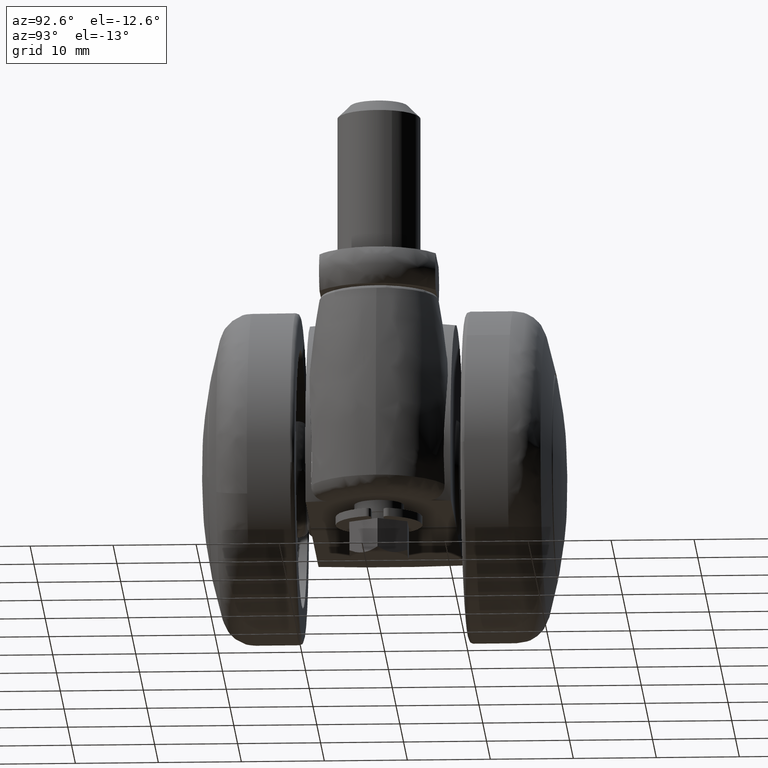
[diagram: clean part render]
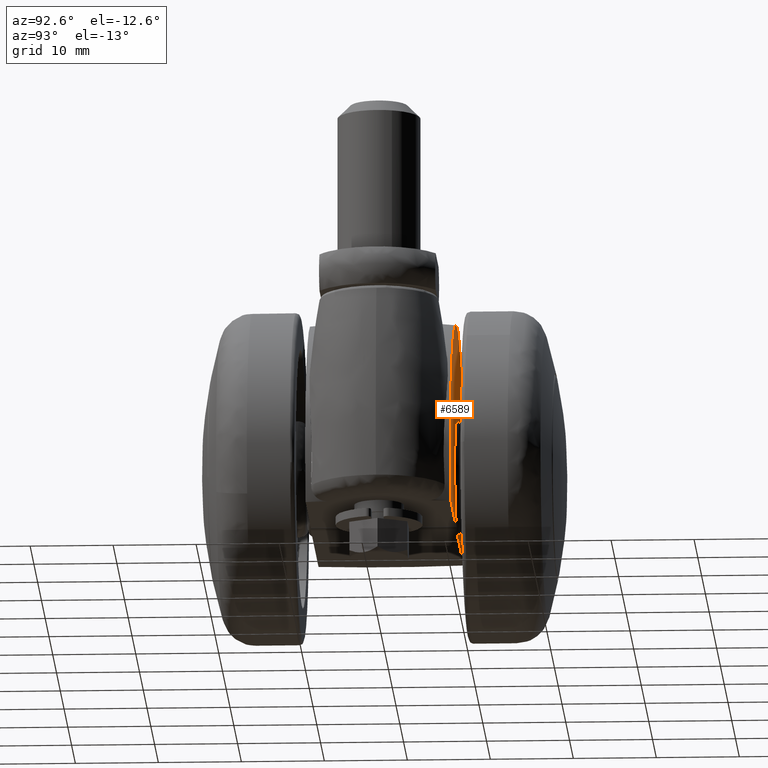
[diagram: same view with one face highlighted and labeled with its STEP entity id]
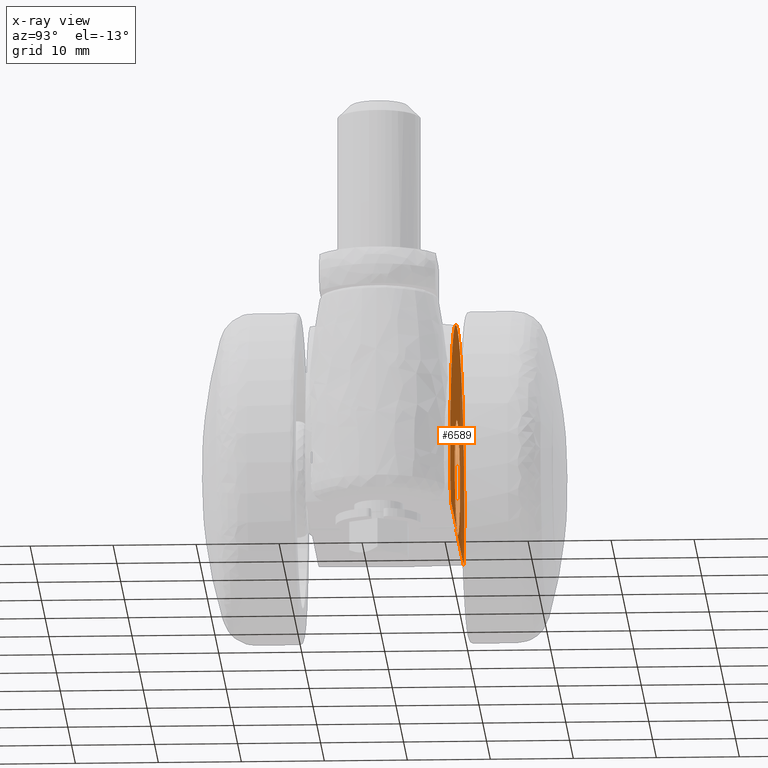
[diagram: x-ray of the same camera — body ghosted, the highlighted face saturated]
A machine part, auxiliary view. The second image highlights one B-rep face of the part: STEP entity #6589.
The next image is the same camera in x-ray: the body ghosted, the highlighted face saturated — about 32% of this face is hidden behind the body in this view.
In plain terms, the highlighted face is a freeform B-spline surface patch.
Its self-contained STEP definition (entity closure, byte-faithful):
#5364=CARTESIAN_POINT('',(2.840961451424674,8.750000000298964,6.333642250225267));
#5365=VERTEX_POINT('',#5364);
#5379=CARTESIAN_POINT('',(0.0,8.750000000000000,-6.941619848709560));
#5380=VERTEX_POINT('',#5379);
#5381=CARTESIAN_POINT('',(2.840961451424674,8.750000000298964,6.333642250225266));
#5382=CARTESIAN_POINT('',(6.941619848709560,8.750000000000000,4.494287899089787));
#5383=CARTESIAN_POINT('',(6.941619848709560,8.750000000000000,0.0));
#5384=CARTESIAN_POINT('',(6.941619848709560,8.750000000000000,-6.941619848709560));
#5385=CARTESIAN_POINT('',(0.0,8.750000000000000,-6.941619848709560));
#5393=(BOUNDED_CURVE()B_SPLINE_CURVE(2,(#5381,#5382,#5383,#5384,#5385),.UNSPECIFIED.,.F.,.U.)B_SPLINE_CURVE_WITH_KNOTS((3,2,3),(0.569501085438608,0.750000000000000,1.0),.UNSPECIFIED.)CURVE()GEOMETRIC_REPRESENTATION_ITEM()RATIONAL_B_SPLINE_CURVE((0.882422160152978,0.788532367687119,1.0,0.707106781186547,1.0))REPRESENTATION_ITEM(''));
#5394=EDGE_CURVE('',#5365,#5380,#5393,.T.);
#5396=CARTESIAN_POINT('',(-6.485756332152302,8.750000000056435,2.474075771601984));
#5397=VERTEX_POINT('',#5396);
#5398=CARTESIAN_POINT('',(0.0,8.750000000000000,-6.941619848709560));
#5399=CARTESIAN_POINT('',(-6.941619848709560,8.750000000000000,-6.941619848709560));
#5400=CARTESIAN_POINT('',(-6.941619848709560,8.750000000000000,0.0));
#5401=CARTESIAN_POINT('',(-6.941619848709560,8.750000000000000,1.279035699320593));
#5402=CARTESIAN_POINT('',(-6.485756332152302,8.750000000056435,2.474075771601984));
#5410=(BOUNDED_CURVE()B_SPLINE_CURVE(2,(#5398,#5399,#5400,#5401,#5402),.UNSPECIFIED.,.F.,.U.)B_SPLINE_CURVE_WITH_KNOTS((3,2,3),(0.0,0.250000000000000,0.310525011914929),.UNSPECIFIED.)CURVE()GEOMETRIC_REPRESENTATION_ITEM()RATIONAL_B_SPLINE_CURVE((1.0,0.707106781186547,1.0,0.929090537766055,0.892515443904836))REPRESENTATION_ITEM(''));
#5411=EDGE_CURVE('',#5380,#5397,#5410,.T.);
#5498=CARTESIAN_POINT('',(0.0,8.750000000000000,6.941619848709560));
#5499=VERTEX_POINT('',#5498);
#5500=CARTESIAN_POINT('',(-6.485756332152302,8.750000000056435,2.474075771601984));
#5501=CARTESIAN_POINT('',(-4.781553769857871,8.750000000000000,6.941619848709560));
#5502=CARTESIAN_POINT('',(0.0,8.750000000000000,6.941619848709560));
#5510=(BOUNDED_CURVE()B_SPLINE_CURVE(2,(#5500,#5501,#5502),.UNSPECIFIED.,.F.,.U.)B_SPLINE_CURVE_WITH_KNOTS((3,3),(0.310525011914929,0.500000000000000),.UNSPECIFIED.)CURVE()GEOMETRIC_REPRESENTATION_ITEM()RATIONAL_B_SPLINE_CURVE((0.892515443904836,0.778016243420492,1.0))REPRESENTATION_ITEM(''));
#5511=EDGE_CURVE('',#5397,#5499,#5510,.T.);
#5513=CARTESIAN_POINT('',(0.0,8.750000000000000,6.941619848709560));
#5514=CARTESIAN_POINT('',(1.485535596518845,8.749999999999998,6.941619848709560));
#5515=CARTESIAN_POINT('',(2.840961451424673,8.750000000298964,6.333642250225267));
#5523=(BOUNDED_CURVE()B_SPLINE_CURVE(2,(#5513,#5514,#5515),.UNSPECIFIED.,.F.,.U.)B_SPLINE_CURVE_WITH_KNOTS((3,3),(0.500000000000000,0.569501085438608),.UNSPECIFIED.)CURVE()GEOMETRIC_REPRESENTATION_ITEM()RATIONAL_B_SPLINE_CURVE((1.0,0.918574413499429,0.882422160152978))REPRESENTATION_ITEM(''));
#5524=EDGE_CURVE('',#5499,#5365,#5523,.T.);
#6229=CARTESIAN_POINT('',(3.0,8.750000000000000,-6.650000000000090));
#6230=VERTEX_POINT('',#6229);
#6231=CARTESIAN_POINT('',(2.523030399291555,8.750000000000000,-7.0));
#6232=VERTEX_POINT('',#6231);
#6233=CARTESIAN_POINT('',(3.0,8.750000000000000,-6.650000000000090));
#6234=CARTESIAN_POINT('',(2.889930092144155,8.750000000000000,-7.0));
#6235=CARTESIAN_POINT('',(2.523030399291555,8.750000000000000,-6.999999999999999));
#6243=(BOUNDED_CURVE()B_SPLINE_CURVE(2,(#6233,#6234,#6235),.UNSPECIFIED.,.F.,.U.)CURVE()GEOMETRIC_REPRESENTATION_ITEM()QUASI_UNIFORM_CURVE()RATIONAL_B_SPLINE_CURVE((1.0,0.806225774829911,1.0))REPRESENTATION_ITEM(''));
#6244=EDGE_CURVE('',#6230,#6232,#6243,.T.);
#6281=CARTESIAN_POINT('',(-17.071565970389500,8.749999987782589,-7.0));
#6282=VERTEX_POINT('',#6281);
#6283=CARTESIAN_POINT('',(2.523030399291555,8.750000000000000,-7.0));
#6284=CARTESIAN_POINT('',(-17.071565970389500,8.749999987782589,-7.0));
#6285=QUASI_UNIFORM_CURVE('',1,(#6283,#6284),.UNSPECIFIED.,.F.,.U.);
#6286=EDGE_CURVE('',#6232,#6282,#6285,.T.);
#6470=CARTESIAN_POINT('',(17.210922830588100,8.749999987976100,-6.650000000000090));
#6471=VERTEX_POINT('',#6470);
#6479=CARTESIAN_POINT('',(-17.071565970389500,8.749999987782589,-7.0));
#6480=CARTESIAN_POINT('',(-22.391957248421715,8.750000000000000,5.975344165642881));
#6481=CARTESIAN_POINT('',(-11.314275279131371,8.750000000000000,14.574825647424429));
#6482=CARTESIAN_POINT('',(-0.236593309841026,8.750000000000000,23.174307129205971));
#6483=CARTESIAN_POINT('',(11.014350619687320,8.750000000000000,14.802785149132500));
#6484=CARTESIAN_POINT('',(22.265294549215678,8.750000000000000,6.431263169059013));
#6485=CARTESIAN_POINT('',(17.210922830588100,8.749999987976100,-6.650000000000090));
#6493=(BOUNDED_CURVE()B_SPLINE_CURVE(2,(#6479,#6480,#6481,#6482,#6483,#6484,#6485),.UNSPECIFIED.,.F.,.U.)B_SPLINE_CURVE_WITH_KNOTS((3,2,2,3),(0.0,0.333333333333333,0.666666666666667,1.0),.UNSPECIFIED.)CURVE()GEOMETRIC_REPRESENTATION_ITEM()RATIONAL_B_SPLINE_CURVE((1.0,0.796140760664161,1.0,0.796140760664161,1.0,0.796140760664161,1.0))REPRESENTATION_ITEM(''));
#6494=EDGE_CURVE('',#6282,#6471,#6493,.T.);
#6557=CARTESIAN_POINT('',(17.210922830588100,8.749999987976100,-6.650000000000090));
#6558=CARTESIAN_POINT('',(3.0,8.750000000000000,-6.650000000000090));
#6559=QUASI_UNIFORM_CURVE('',1,(#6557,#6558),.UNSPECIFIED.,.F.,.U.);
#6560=EDGE_CURVE('',#6471,#6230,#6559,.T.);
#6572=CARTESIAN_POINT('',(-20.294009891721700,8.750000000000000,19.721238250774661));
#6573=CARTESIAN_POINT('',(-20.294009891721700,8.750000000000000,-8.271228647096152));
#6574=CARTESIAN_POINT('',(20.289858740976332,8.750000000000000,19.721238250774661));
#6575=CARTESIAN_POINT('',(20.289858740976332,8.750000000000000,-8.271228647096152));
#6576=B_SPLINE_SURFACE_WITH_KNOTS('',1,1,((#6572,#6574),(#6573,#6575)),.UNSPECIFIED.,.F.,.F.,.U.,(2,2),(2,2),(0.0,27.992466897870809),(0.0,40.583868632698028),.UNSPECIFIED.);
#6577=ORIENTED_EDGE('',*,*,#6560,.T.);
#6578=ORIENTED_EDGE('',*,*,#6244,.T.);
#6579=ORIENTED_EDGE('',*,*,#6286,.T.);
#6580=ORIENTED_EDGE('',*,*,#6494,.T.);
#6581=EDGE_LOOP('',(#6577,#6578,#6579,#6580));
#6582=FACE_OUTER_BOUND('',#6581,.T.);
#6583=ORIENTED_EDGE('',*,*,#5411,.F.);
#6584=ORIENTED_EDGE('',*,*,#5394,.F.);
#6585=ORIENTED_EDGE('',*,*,#5524,.F.);
#6586=ORIENTED_EDGE('',*,*,#5511,.F.);
#6587=EDGE_LOOP('',(#6583,#6584,#6585,#6586));
#6588=FACE_BOUND('',#6587,.T.);
#6589=ADVANCED_FACE('',(#6582,#6588),#6576,.F.);